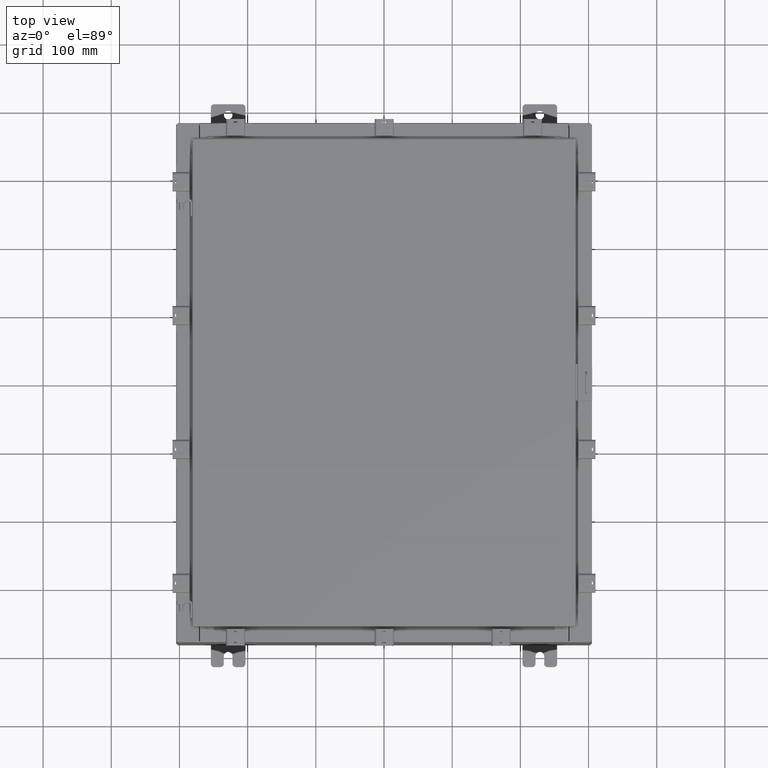
[diagram: clean part render]
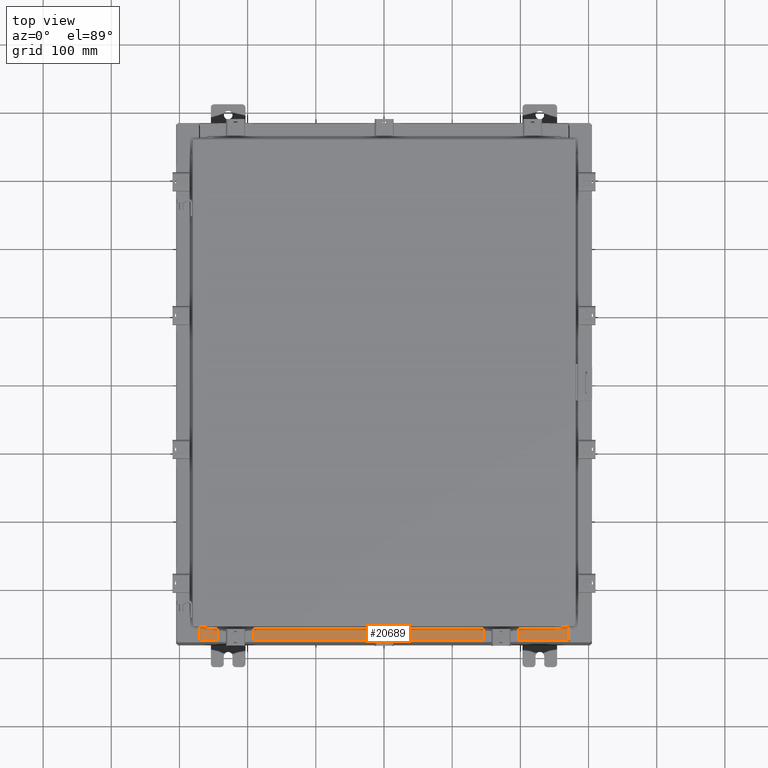
[diagram: same view with one face highlighted and labeled with its STEP entity id]
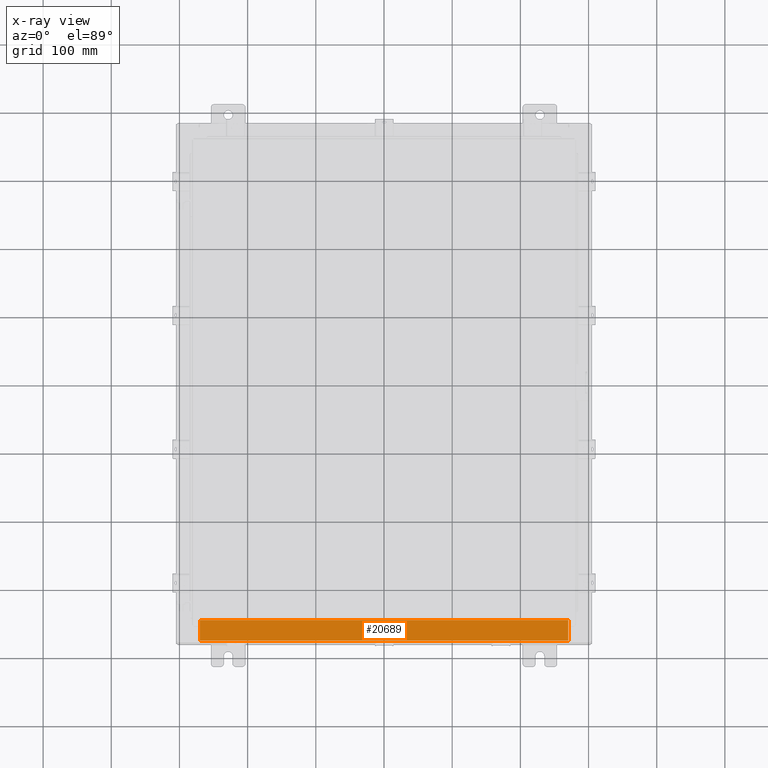
[diagram: x-ray of the same camera — body ghosted, the highlighted face saturated]
A machine part, top view. The second image highlights one B-rep face of the part: STEP entity #20689.
The next image is the same camera in x-ray: the body ghosted, the highlighted face saturated — about 0% of this face is hidden behind the body in this view.
In plain terms, the highlighted planar face has unit normal (-0, -0, 1).
Its self-contained STEP definition (entity closure, byte-faithful):
#45 = ORIENTED_EDGE ( 'NONE', *, *, #2483, .T. ) ;
#1645 = CARTESIAN_POINT ( 'NONE',  ( 10.63720000000000400, -0.08770000000000047200, 5.000000000000000000 ) ) ;
#1798 = ORIENTED_EDGE ( 'NONE', *, *, #19086, .F. ) ;
#2289 = CARTESIAN_POINT ( 'NONE',  ( 0.0000000000000000000, 1.782631094477737600E-014, 5.000000000000000000 ) ) ;
#2483 = EDGE_CURVE ( 'NONE', #11701, #19626, #15243, .T. ) ;
#2980 = LINE ( 'NONE', #15192, #16107 ) ;
#2985 = DIRECTION ( 'NONE',  ( -0.0000000000000000000, 1.000000000000000000, -3.566381192773190000E-015 ) ) ;
#3063 = CARTESIAN_POINT ( 'NONE',  ( 10.63720000000000200, -1.287299999999999900, 5.000000000000004400 ) ) ;
#3156 = AXIS2_PLACEMENT_3D ( 'NONE', #2289, #14798, #4102 ) ;
#3290 = LINE ( 'NONE', #20902, #22302 ) ;
#3344 = FACE_OUTER_BOUND ( 'NONE', #9556, .T. ) ;
#4102 = DIRECTION ( 'NONE',  ( 0.0000000000000000000, -1.000000000000000000, 3.566381192773190000E-015 ) ) ;
#4543 = DIRECTION ( 'NONE',  ( -1.000000000000000000, -5.136404305013091600E-017, 1.831837571187793700E-031 ) ) ;
#6707 = CARTESIAN_POINT ( 'NONE',  ( -10.63720000000000200, -0.08770000000000081900, 5.000000000000000000 ) ) ;
#6754 = VERTEX_POINT ( 'NONE', #9514 ) ;
#7186 = VECTOR ( 'NONE', #15613, 39.37007874015748100 ) ;
#7370 = ORIENTED_EDGE ( 'NONE', *, *, #11545, .F. ) ;
#7618 = PLANE ( 'NONE',  #3156 ) ;
#7687 = VERTEX_POINT ( 'NONE', #3063 ) ;
#9391 = VECTOR ( 'NONE', #4543, 39.37007874015748100 ) ;
#9514 = CARTESIAN_POINT ( 'NONE',  ( -10.63720000000000200, -1.287299999999999200, 5.000000000000004400 ) ) ;
#9556 = EDGE_LOOP ( 'NONE', ( #1798, #7370, #14264, #45 ) ) ;
#11545 = EDGE_CURVE ( 'NONE', #7687, #6754, #2980, .T. ) ;
#11641 = DIRECTION ( 'NONE',  ( -1.000000000000000000, 0.0000000000000000000, 0.0000000000000000000 ) ) ;
#11701 = VERTEX_POINT ( 'NONE', #1645 ) ;
#13445 = CARTESIAN_POINT ( 'NONE',  ( 4.504626575497439200E-018, -0.08770000000000081900, 5.000000000000000000 ) ) ;
#14264 = ORIENTED_EDGE ( 'NONE', *, *, #22624, .F. ) ;
#14798 = DIRECTION ( 'NONE',  ( 0.0000000000000000000, 3.566381192773190000E-015, 1.000000000000000000 ) ) ;
#15192 = CARTESIAN_POINT ( 'NONE',  ( 10.63720000000000400, -1.287299999999999900, 5.000000000000003600 ) ) ;
#15243 = LINE ( 'NONE', #13445, #9391 ) ;
#15613 = DIRECTION ( 'NONE',  ( -0.0000000000000000000, -1.000000000000000000, 3.566381192773190000E-015 ) ) ;
#16107 = VECTOR ( 'NONE', #11641, 39.37007874015748100 ) ;
#17252 = LINE ( 'NONE', #22736, #7186 ) ;
#19086 = EDGE_CURVE ( 'NONE', #6754, #19626, #3290, .T. ) ;
#19626 = VERTEX_POINT ( 'NONE', #6707 ) ;
#20689 = ADVANCED_FACE ( 'NONE', ( #3344 ), #7618, .T. ) ;
#20902 = CARTESIAN_POINT ( 'NONE',  ( -10.63720000000000200, -0.07469999999999973900, 5.000000000000000000 ) ) ;
#22302 = VECTOR ( 'NONE', #2985, 39.37007874015748100 ) ;
#22624 = EDGE_CURVE ( 'NONE', #11701, #7687, #17252, .T. ) ;
#22736 = CARTESIAN_POINT ( 'NONE',  ( 10.63720000000000200, -1.300299999999999800, 5.000000000000004400 ) ) ;